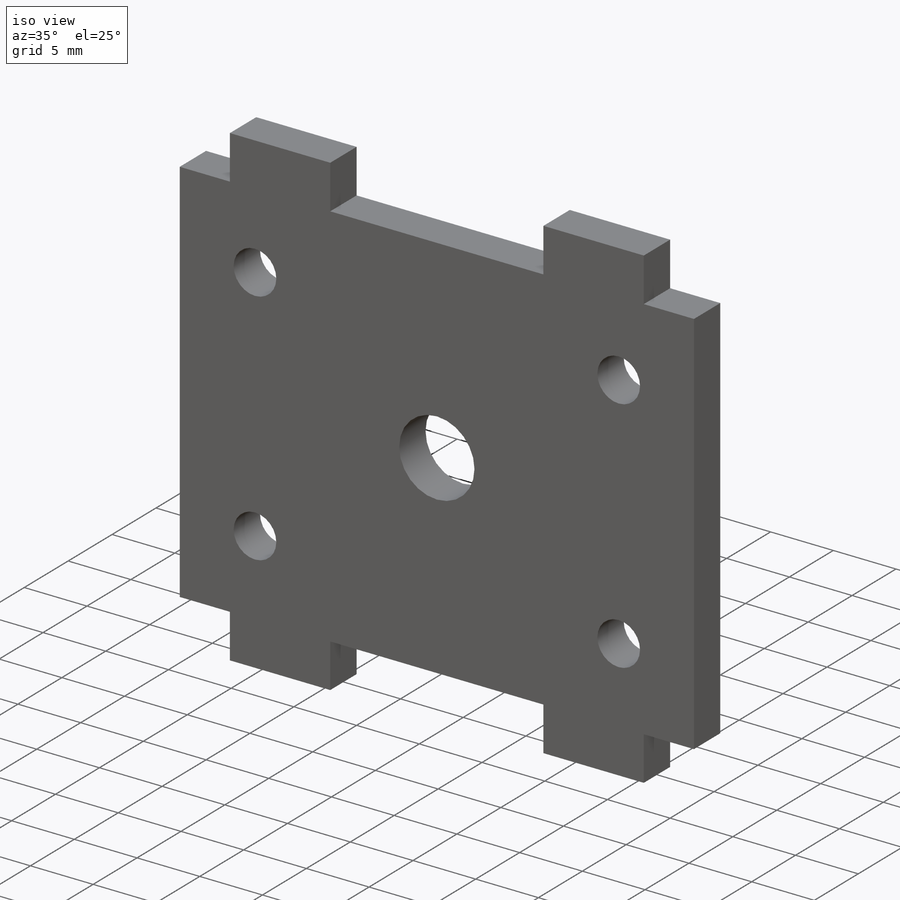
[diagram: iso view]
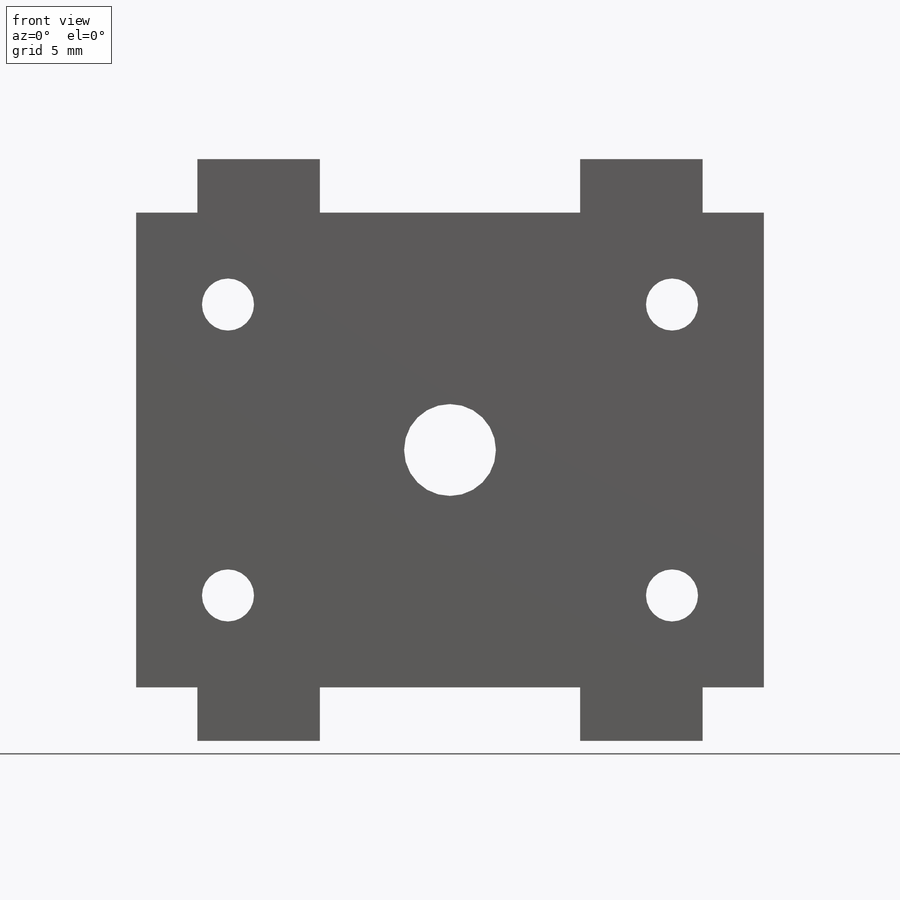
[diagram: front view]
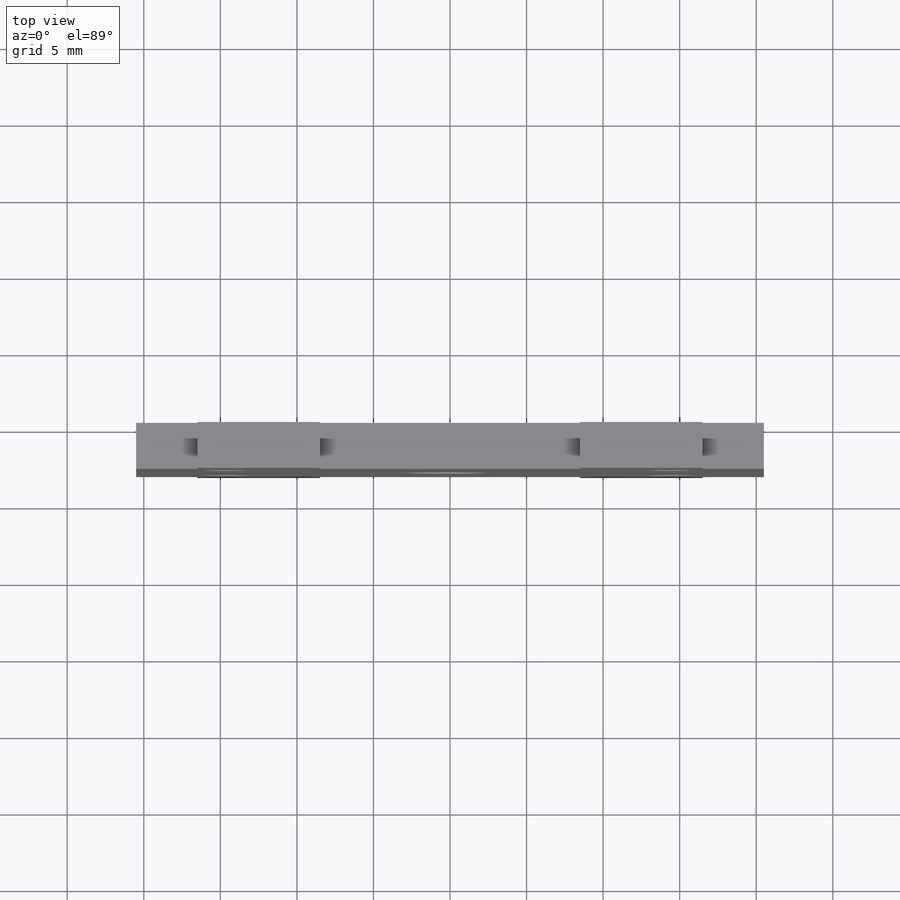
[diagram: top view]
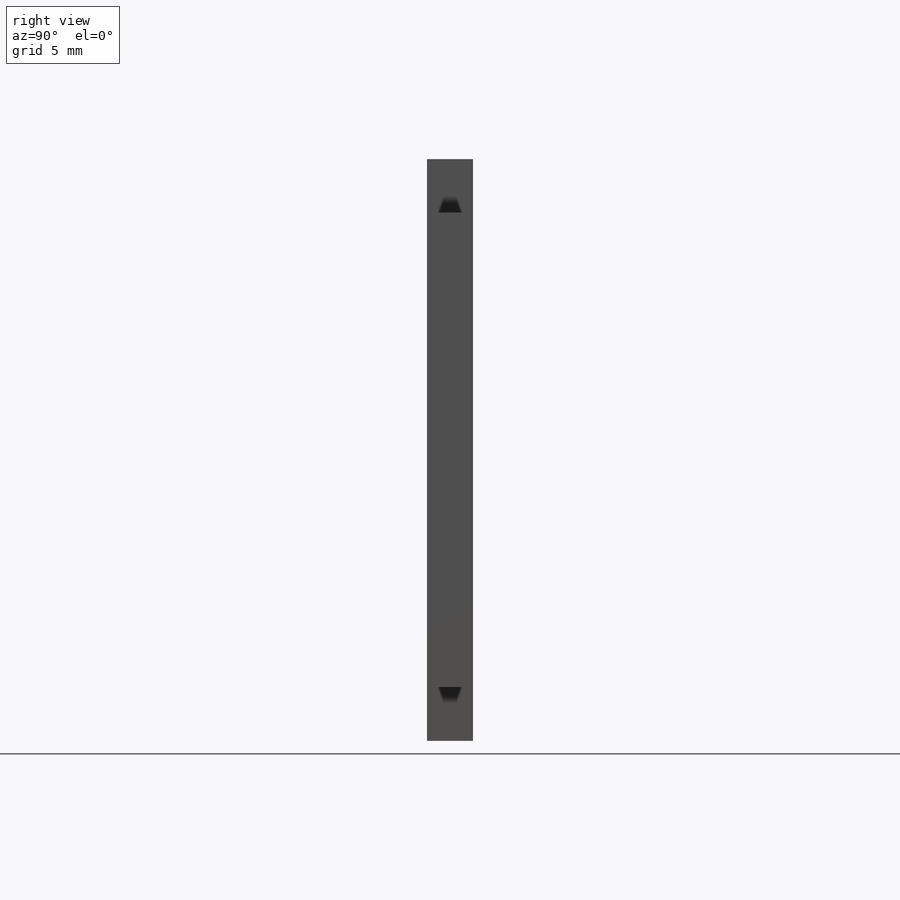
[diagram: right view]
SOLIDWORKS PART (.sldprt)
format: sldprt  version: not decoded by parser v0  size: 219,136 bytes
history: native  units: mm
features: sketch x5, hole x2, mirror x2, material x1, extrude x1 (+13 scaffold rows collapsed)
feature tree (24):
  scaffold x13  (default folders/planes/origin — collapsed)
  material  "Material <not specified>"
  sketch  "Sketch1"  dims[c1.D5=~4.572304mm c1.D1=41.0mm c1.D2=31.0mm c2.D1=15.5mm c2.D2=20.5mm c2.D3=8.0mm c2.D4=4.0mm c2.D5=15.5mm c2.D6=3.5mm]
  extrude  "Boss-Extrude1"  Depth=3mm
  hole  "Ø6.0 (6) Diameter Hole1"  Diameter=6mm Depth=3mm
  sketch  "Sketch3"
  sketch  "Sketch2"  dims[hole-wizard template sketch: 60 standard entries collapsed; hole parameters kept: c18.Thru Hole Depth=3.0mm]
  hole  "M3 Clearance Hole1"  Diameter=3.4mm Depth=3.001mm
  sketch  "Sketch5"  dims[D1=6.0mm D2=6.0mm]
  sketch  "Sketch4"  dims[hole-wizard template sketch: 60 standard entries collapsed; hole parameters kept: c18.Thru Hole Depth=3.001mm]
  mirror  "Mirror1"
  mirror  "Mirror2"
decode coverage: 7 of 10 modeling features carry decoded parameters
note: ~ marks probable driven/reference dimensions
note: suppression state not decoded; provenance and decode notes live in map.json
